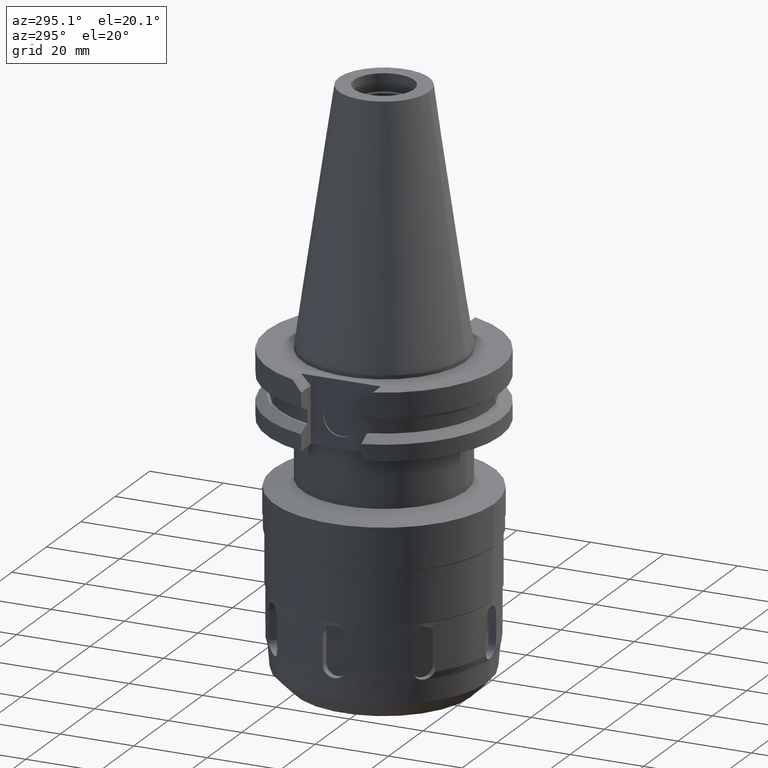
[diagram: clean part render]
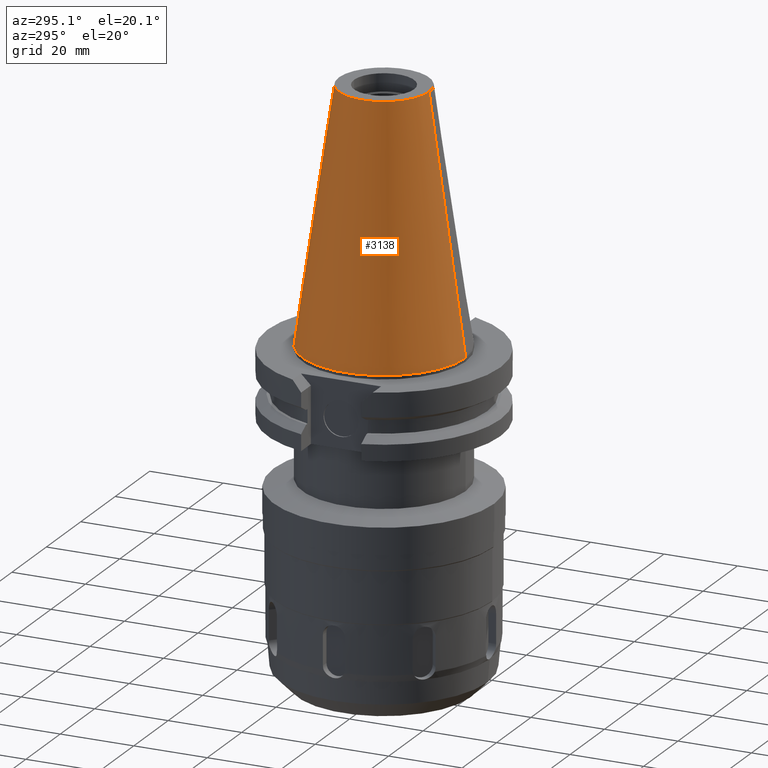
[diagram: same view with one face highlighted and labeled with its STEP entity id]
A machine part, auxiliary view. The second image highlights one B-rep face of the part: STEP entity #3138.
In plain terms, the highlighted conical surface has half-angle 8.297 deg.
Its self-contained STEP definition (entity closure, byte-faithful):
#17=CARTESIAN_POINT('',(0.E0,0.E0,6.825E1));
#18=DIRECTION('',(0.E0,0.E0,-1.E0));
#19=DIRECTION('',(0.E0,-1.E0,0.E0));
#20=AXIS2_PLACEMENT_3D('',#17,#18,#19);
#50=DIRECTION('',(0.E0,-1.443069799457E-1,-9.895329683942E-1));
#51=VECTOR('',#50,6.897193138573E1);
#52=CARTESIAN_POINT('',(0.E0,-1.227186888070E1,6.825E1));
#53=LINE('',#52,#51);
#57=CARTESIAN_POINT('',(0.E0,0.E0,-2.842170943040E-13));
#58=DIRECTION('',(0.E0,0.E0,-1.E0));
#59=DIRECTION('',(0.E0,-1.E0,0.E0));
#60=AXIS2_PLACEMENT_3D('',#57,#58,#59);
#65=DIRECTION('',(0.E0,1.443069799457E-1,-9.895329683942E-1));
#66=VECTOR('',#65,6.897193138573E1);
#67=CARTESIAN_POINT('',(0.E0,1.227186888070E1,6.825E1));
#68=LINE('',#67,#66);
#2702=CARTESIAN_POINT('',(0.E0,-1.227186888070E1,6.825E1));
#2703=CARTESIAN_POINT('',(0.E0,1.227186888070E1,6.825E1));
#2704=VERTEX_POINT('',#2702);
#2705=VERTEX_POINT('',#2703);
#3032=CARTESIAN_POINT('',(0.E0,2.2225E1,-1.563194018672E-13));
#3033=VERTEX_POINT('',#3032);
#3034=CARTESIAN_POINT('',(0.E0,-2.2225E1,-1.563194018672E-13));
#3035=VERTEX_POINT('',#3034);
#3124=CARTESIAN_POINT('',(0.E0,0.E0,3.4125E1));
#3125=DIRECTION('',(0.E0,0.E0,-1.E0));
#3126=DIRECTION('',(0.E0,-1.E0,0.E0));
#3127=AXIS2_PLACEMENT_3D('',#3124,#3125,#3126);
#3128=CONICAL_SURFACE('',#3127,1.724843444035E1,8.29715E0);
#3130=ORIENTED_EDGE('',*,*,#3129,.F.);
#3131=ORIENTED_EDGE('',*,*,#3111,.F.);
#3133=ORIENTED_EDGE('',*,*,#3132,.T.);
#3135=ORIENTED_EDGE('',*,*,#3134,.T.);
#3136=EDGE_LOOP('',(#3130,#3131,#3133,#3135));
#3137=FACE_OUTER_BOUND('',#3136,.F.);
#21=CIRCLE('',#20,1.227186888070E1);
#61=CIRCLE('',#60,2.2225E1);
#3111=EDGE_CURVE('',#2704,#2705,#21,.T.);
#3129=EDGE_CURVE('',#2705,#3033,#68,.T.);
#3132=EDGE_CURVE('',#2704,#3035,#53,.T.);
#3134=EDGE_CURVE('',#3035,#3033,#61,.T.);
#3138=ADVANCED_FACE('',(#3137),#3128,.T.);